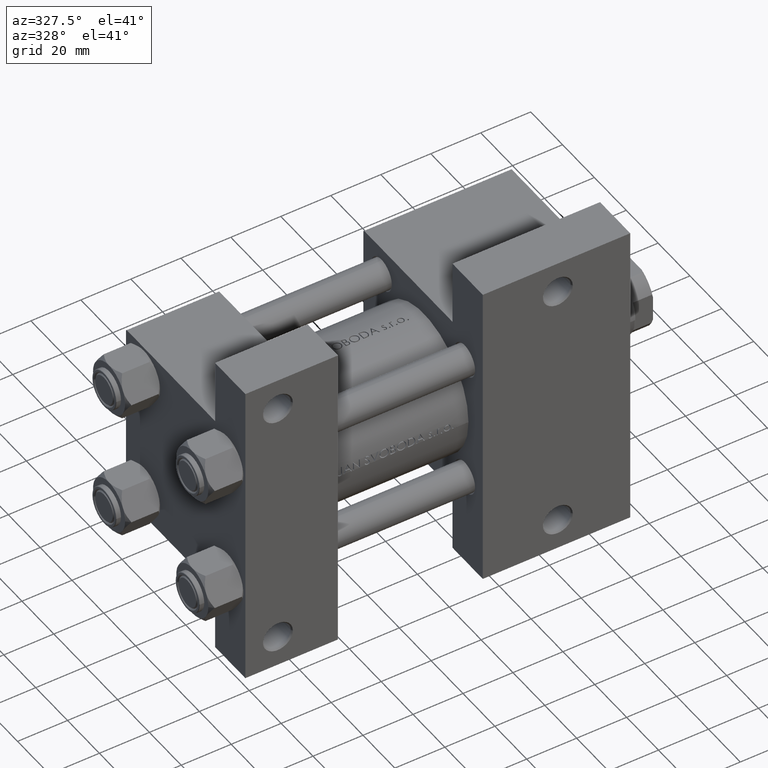
[diagram: clean part render]
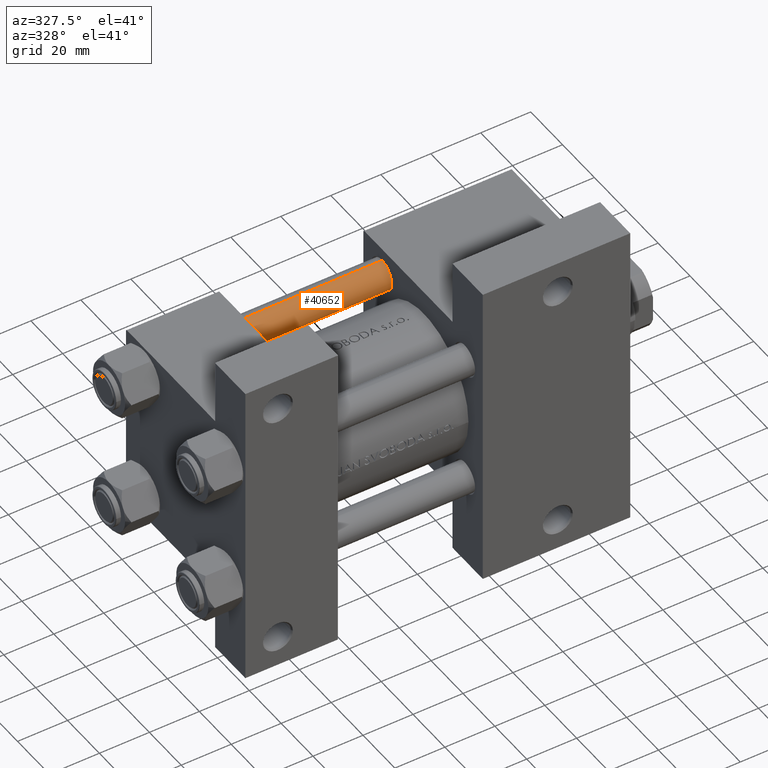
[diagram: same view with one face highlighted and labeled with its STEP entity id]
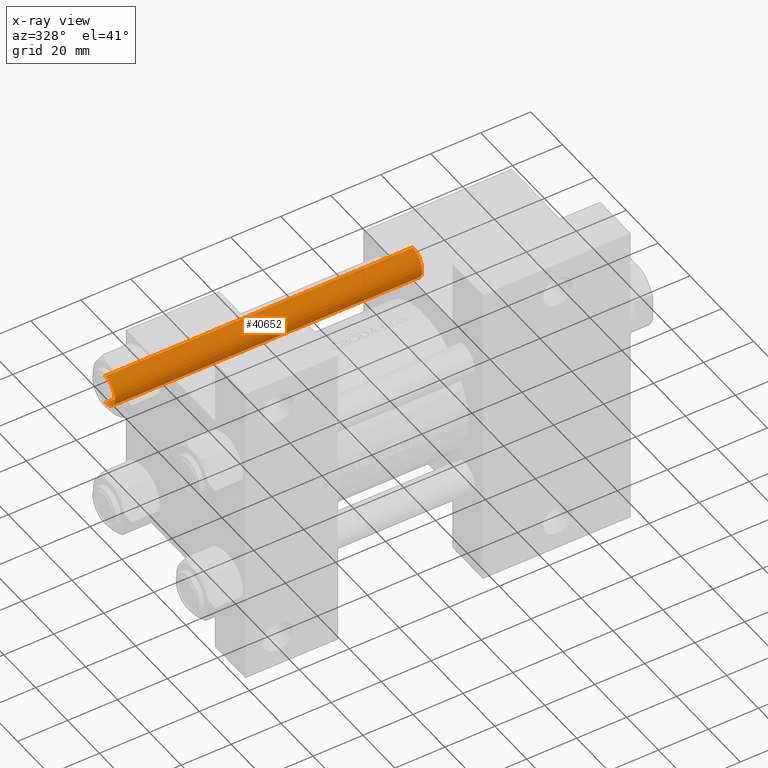
[diagram: x-ray of the same camera — body ghosted, the highlighted face saturated]
A machine part, auxiliary view. The second image highlights one B-rep face of the part: STEP entity #40652.
The next image is the same camera in x-ray: the body ghosted, the highlighted face saturated — about 0% of this face is hidden behind the body in this view.
In plain terms, the highlighted cylindrical surface (edge-blend (fillet) strip) has radius 6 mm, axis along (-1, -0, -0).
Its self-contained STEP definition (entity closure, byte-faithful):
#609 = CARTESIAN_POINT ( 'NONE',  ( -6.000000000000000888, 0.000000000000000000, 123.5000000000000426 ) ) ;
#1160 = VECTOR ( 'NONE', #18685, 1000.000000000000000 ) ;
#1699 = CIRCLE ( 'NONE', #27827, 6.000000000000000888 ) ;
#2943 = CYLINDRICAL_SURFACE ( 'NONE', #20065, 6.000000000000000888 ) ;
#4347 = CARTESIAN_POINT ( 'NONE',  ( -6.000000000000000888, 0.000000000000000000, 0.4999999999999865663 ) ) ;
#4543 = LINE ( 'NONE', #14969, #1160 ) ;
#6043 = VERTEX_POINT ( 'NONE', #609 ) ;
#6925 = DIRECTION ( 'NONE',  ( -0.000000000000000000, -0.000000000000000000, -1.000000000000000000 ) ) ;
#9170 = CARTESIAN_POINT ( 'NONE',  ( 0.000000000000000000, 0.000000000000000000, 123.5000000000000426 ) ) ;
#10271 = ORIENTED_EDGE ( 'NONE', *, *, #43398, .T. ) ;
#13627 = DIRECTION ( 'NONE',  ( 1.000000000000000000, 0.000000000000000000, 0.000000000000000000 ) ) ;
#14413 = EDGE_CURVE ( 'NONE', #14899, #16654, #18746, .T. ) ;
#14899 = VERTEX_POINT ( 'NONE', #19810 ) ;
#14969 = CARTESIAN_POINT ( 'NONE',  ( -6.000000000000000888, 0.000000000000000000, 124.0000000000000000 ) ) ;
#16654 = VERTEX_POINT ( 'NONE', #41944 ) ;
#18685 = DIRECTION ( 'NONE',  ( -0.000000000000000000, -0.000000000000000000, -1.000000000000000000 ) ) ;
#18746 = LINE ( 'NONE', #27593, #48124 ) ;
#19008 = CARTESIAN_POINT ( 'NONE',  ( 0.000000000000000000, 0.000000000000000000, 0.4999999999999865663 ) ) ;
#19810 = CARTESIAN_POINT ( 'NONE',  ( 6.000000000000000888, 7.347880794884120722E-16, 123.5000000000000426 ) ) ;
#20065 = AXIS2_PLACEMENT_3D ( 'NONE', #45074, #6925, #44830 ) ;
#22257 = ORIENTED_EDGE ( 'NONE', *, *, #26779, .T. ) ;
#26779 = EDGE_CURVE ( 'NONE', #43881, #16654, #1699, .T. ) ;
#27593 = CARTESIAN_POINT ( 'NONE',  ( 6.000000000000000888, 7.347880794884120722E-16, 124.0000000000000000 ) ) ;
#27827 = AXIS2_PLACEMENT_3D ( 'NONE', #19008, #34612, #38811 ) ;
#28720 = DIRECTION ( 'NONE',  ( 0.000000000000000000, 0.000000000000000000, -1.000000000000000000 ) ) ;
#29262 = ORIENTED_EDGE ( 'NONE', *, *, #44843, .T. ) ;
#34612 = DIRECTION ( 'NONE',  ( -0.000000000000000000, -0.000000000000000000, 1.000000000000000000 ) ) ;
#36268 = ORIENTED_EDGE ( 'NONE', *, *, #14413, .F. ) ;
#38811 = DIRECTION ( 'NONE',  ( 1.000000000000000000, 0.000000000000000000, 0.000000000000000000 ) ) ;
#40652 = ADVANCED_FACE ( 'NONE', ( #41362 ), #2943, .T. ) ;
#41362 = FACE_OUTER_BOUND ( 'NONE', #48266, .T. ) ;
#41944 = CARTESIAN_POINT ( 'NONE',  ( 6.000000000000000888, 7.347880794884120722E-16, 0.4999999999999865663 ) ) ;
#43398 = EDGE_CURVE ( 'NONE', #14899, #6043, #47029, .T. ) ;
#43881 = VERTEX_POINT ( 'NONE', #4347 ) ;
#44830 = DIRECTION ( 'NONE',  ( -1.000000000000000000, 0.000000000000000000, 0.000000000000000000 ) ) ;
#44843 = EDGE_CURVE ( 'NONE', #6043, #43881, #4543, .T. ) ;
#45074 = CARTESIAN_POINT ( 'NONE',  ( 0.000000000000000000, 0.000000000000000000, 124.0000000000000000 ) ) ;
#47029 = CIRCLE ( 'NONE', #47804, 6.000000000000000888 ) ;
#47804 = AXIS2_PLACEMENT_3D ( 'NONE', #9170, #28720, #13627 ) ;
#48124 = VECTOR ( 'NONE', #48967, 1000.000000000000000 ) ;
#48266 = EDGE_LOOP ( 'NONE', ( #36268, #10271, #29262, #22257 ) ) ;
#48967 = DIRECTION ( 'NONE',  ( -0.000000000000000000, -0.000000000000000000, -1.000000000000000000 ) ) ;